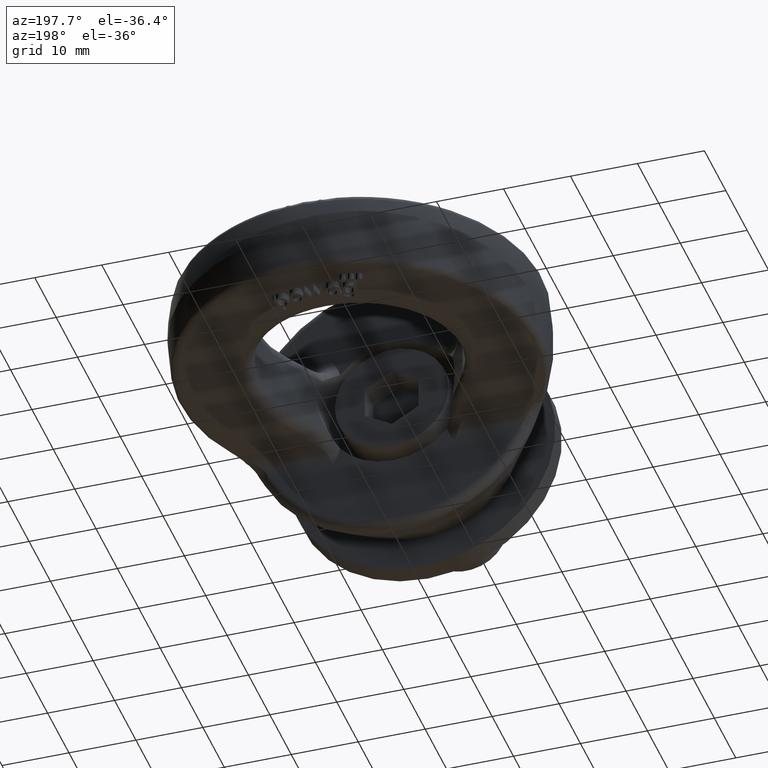
[diagram: clean part render]
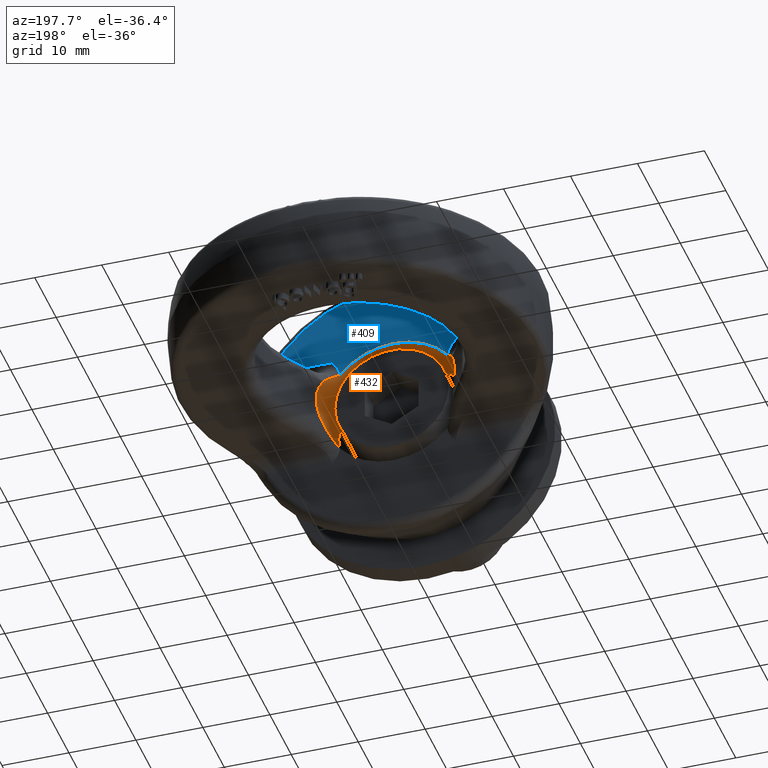
[diagram: same view with the hole feature highlighted: cylindrical wall and planar end face, labeled with their STEP entity ids]
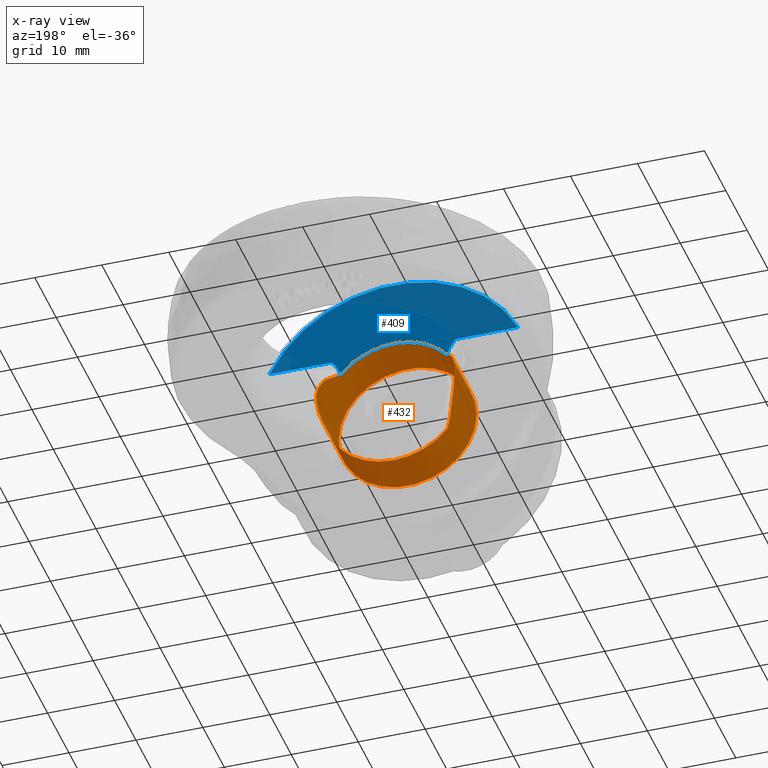
[diagram: x-ray of the same camera — body ghosted, the hole faces saturated]
A machine part, auxiliary view. The highlighted faces form one hole feature of diameter 20.63 mm: the cylindrical wall (entity #432, orange) and its adjacent planar end face (entity #409, blue) — they share a circular edge in the B-rep.
The next image is the same camera in x-ray (body ghosted, the hole faces saturated) — the bore reads through the body.
Wall:
#215=ELLIPSE('',#3365,20.0997606638776,10.3149545762236);
#219=ELLIPSE('',#3370,20.0997606638776,10.3149545762236);
#231=CYLINDRICAL_SURFACE('',#3402,10.3149545762236);
#432=ADVANCED_FACE('',(#762,#763),#231,.F.);
#692=CIRCLE('',#3350,10.3149545762236);
#716=CIRCLE('',#3398,10.3149545762236);
#718=CIRCLE('',#3401,10.3149545762236);
#762=FACE_BOUND('',#844,.T.);
#763=FACE_BOUND('',#845,.T.);
#844=EDGE_LOOP('',(#1627));
#845=EDGE_LOOP('',(#1628,#1629,#1630,#1631,#1632,#1633,#1634,#1635));
#1627=ORIENTED_EDGE('',*,*,#2764,.F.);
#1628=ORIENTED_EDGE('',*,*,#2740,.T.);
#1629=ORIENTED_EDGE('',*,*,#2766,.T.);
#1630=ORIENTED_EDGE('',*,*,#2767,.T.);
#1631=ORIENTED_EDGE('',*,*,#2768,.T.);
#1632=ORIENTED_EDGE('',*,*,#2733,.T.);
#1633=ORIENTED_EDGE('',*,*,#2763,.T.);
#1634=ORIENTED_EDGE('',*,*,#2708,.T.);
#1635=ORIENTED_EDGE('',*,*,#2758,.T.);
#2412=VERTEX_POINT('',#4419);
#2413=VERTEX_POINT('',#4420);
#2435=VERTEX_POINT('',#4501);
#2436=VERTEX_POINT('',#4502);
#2440=VERTEX_POINT('',#4513);
#2441=VERTEX_POINT('',#4515);
#2448=VERTEX_POINT('',#4684);
#2450=VERTEX_POINT('',#4694);
#2451=VERTEX_POINT('',#4696);
#2708=EDGE_CURVE('',#2412,#2413,#692,.T.);
#2733=EDGE_CURVE('',#2435,#2436,#215,.T.);
#2740=EDGE_CURVE('',#2441,#2440,#219,.T.);
#2758=EDGE_CURVE('',#2413,#2441,#3134,.T.);
#2763=EDGE_CURVE('',#2436,#2412,#3135,.T.);
#2764=EDGE_CURVE('',#2448,#2448,#716,.T.);
#2766=EDGE_CURVE('',#2440,#2450,#3136,.T.);
#2767=EDGE_CURVE('',#2450,#2451,#718,.T.);
#2768=EDGE_CURVE('',#2451,#2435,#3137,.T.);
#3134=B_SPLINE_CURVE_WITH_KNOTS('',3,(#4628,#4629,#4630,#4631,#4632,#4633),
 .UNSPECIFIED.,.F.,.F.,(4,2,4),(0.,0.5,1.),.UNSPECIFIED.);
#3135=B_SPLINE_CURVE_WITH_KNOTS('',3,(#4659,#4660,#4661,#4662,#4663,#4664),
 .UNSPECIFIED.,.F.,.F.,(4,2,4),(0.,0.5,1.),.UNSPECIFIED.);
#3136=B_SPLINE_CURVE_WITH_KNOTS('',3,(#4688,#4689,#4690,#4691,#4692,#4693),
 .UNSPECIFIED.,.F.,.F.,(4,2,4),(0.,0.5,1.),.UNSPECIFIED.);
#3137=B_SPLINE_CURVE_WITH_KNOTS('',3,(#4697,#4698,#4699,#4700,#4701,#4702),
 .UNSPECIFIED.,.F.,.F.,(4,2,4),(0.,0.5,1.),.UNSPECIFIED.);
#3350=AXIS2_PLACEMENT_3D('',#4418,#3570,#3571);
#3365=AXIS2_PLACEMENT_3D('',#4500,#3604,#3605);
#3370=AXIS2_PLACEMENT_3D('',#4514,#3617,#3618);
#3398=AXIS2_PLACEMENT_3D('',#4683,#3674,#3675);
#3401=AXIS2_PLACEMENT_3D('',#4695,#3680,#3681);
#3402=AXIS2_PLACEMENT_3D('',#4703,#3682,#3683);
#3570=DIRECTION('',(-4.38613491528481E-16,1.,0.));
#3571=DIRECTION('',(-1.,-3.36351161443873E-16,0.));
#3604=DIRECTION('',(0.858276265611807,0.513187930379751,0.));
#3605=DIRECTION('',(-0.513187930379751,0.858276265611807,0.));
#3617=DIRECTION('',(-0.858276265611807,0.51318793037975,0.));
#3618=DIRECTION('',(0.51318793037975,0.858276265611807,0.));
#3674=DIRECTION('',(-4.38613491528481E-16,1.,0.));
#3675=DIRECTION('',(-1.,-5.04526742165809E-16,0.));
#3680=DIRECTION('',(4.38613491528481E-16,1.,1.02763225525862E-30));
#3681=DIRECTION('',(1.,-3.36351161443873E-16,2.34291072916505E-15));
#3682=DIRECTION('',(0.,1.,0.));
#3683=DIRECTION('',(0.,0.,1.));
#4418=CARTESIAN_POINT('',(0.,16.,0.));
#4419=CARTESIAN_POINT('',(-7.9946415982817,15.9999999999922,6.51797465663843));
#4420=CARTESIAN_POINT('',(7.99464159827745,16.,6.51797465664364));
#4500=CARTESIAN_POINT('',(0.,2.7709415751453,0.));
#4501=CARTESIAN_POINT('',(-9.59391410224325,18.8161918252449,-3.78881249316129));
#4502=CARTESIAN_POINT('',(-9.59391410224327,18.8161918252449,3.78881249316126));
#4513=CARTESIAN_POINT('',(9.59391410224328,18.8161918252449,-3.78881249316124));
#4514=CARTESIAN_POINT('',(0.,2.77094157514529,0.));
#4515=CARTESIAN_POINT('',(9.59391410224326,18.8161918252449,3.78881249316127));
#4628=CARTESIAN_POINT('',(7.99464159828189,15.9999999999924,6.5179746566382));
#4629=CARTESIAN_POINT('',(8.33432097974252,16.4597944126693,6.10133988032189));
#4630=CARTESIAN_POINT('',(8.63847987557659,16.9205075742358,5.65994217188705));
#4631=CARTESIAN_POINT('',(9.15457159783199,17.9032714194584,4.78038688915605));
#4632=CARTESIAN_POINT('',(9.36959059074412,18.4410241053132,4.35683756812157));
#4633=CARTESIAN_POINT('',(9.59391410224262,18.8161918252476,3.78881249316387));
#4659=CARTESIAN_POINT('',(-9.59391410224175,18.8161918252424,3.78881249316195));
#4660=CARTESIAN_POINT('',(-9.36823750505768,18.4387611500435,4.3602638099473));
#4661=CARTESIAN_POINT('',(-9.15521207442521,17.904752043431,4.77907483641717));
#4662=CARTESIAN_POINT('',(-8.64012250164198,16.9233756860375,5.65736224546359));
#4663=CARTESIAN_POINT('',(-8.33454507784786,16.4600977547688,6.10106501211064));
#4664=CARTESIAN_POINT('',(-7.9946415982817,15.9999999999922,6.51797465663843));
#4683=CARTESIAN_POINT('',(0.,9.5,0.));
#4684=CARTESIAN_POINT('',(-10.3149545762236,9.49999999999999,0.));
#4688=CARTESIAN_POINT('',(9.59391410224176,18.8161918252424,-3.78881249316193));
#4689=CARTESIAN_POINT('',(9.36823750505769,18.4387611500435,-4.36026380994728));
#4690=CARTESIAN_POINT('',(9.15521207442522,17.904752043431,-4.77907483641715));
#4691=CARTESIAN_POINT('',(8.640122501642,16.9233756860375,-5.65736224546357));
#4692=CARTESIAN_POINT('',(8.33454507784788,16.4600977547688,-6.10106501211061));
#4693=CARTESIAN_POINT('',(7.99464159828172,15.9999999999922,-6.51797465663841));
#4694=CARTESIAN_POINT('',(7.99464159828172,15.9999999999922,-6.51797465663841));
#4695=CARTESIAN_POINT('',(0.,16.,0.));
#4696=CARTESIAN_POINT('',(-7.99464159827744,16.,-6.51797465664366));
#4697=CARTESIAN_POINT('',(-7.99464159828188,15.9999999999924,-6.51797465663822));
#4698=CARTESIAN_POINT('',(-8.33432097974251,16.4597944126693,-6.10133988032192));
#4699=CARTESIAN_POINT('',(-8.63847987557657,16.9205075742358,-5.65994217188708));
#4700=CARTESIAN_POINT('',(-9.15457159783198,17.9032714194584,-4.78038688915607));
#4701=CARTESIAN_POINT('',(-9.36959059074411,18.4410241053132,-4.35683756812159));
#4702=CARTESIAN_POINT('',(-9.59391410224261,18.8161918252476,-3.7888124931639));
#4703=CARTESIAN_POINT('',(0.,8.75,0.));
End face:
#246=FACE_OUTER_BOUND('',#816,.T.);
#409=ADVANCED_FACE('',(#246),#596,.T.);
#596=PLANE('',#3352);
#692=CIRCLE('',#3350,10.3149545762236);
#693=CIRCLE('',#3351,20.657406330606);
#816=EDGE_LOOP('',(#1524,#1525,#1526,#1527,#1528,#1529));
#1060=LINE('',#4426,#1252);
#1061=LINE('',#4430,#1253);
#1252=VECTOR('',#3572,1.);
#1253=VECTOR('',#3575,1.);
#1524=ORIENTED_EDGE('',*,*,#2708,.F.);
#1525=ORIENTED_EDGE('',*,*,#2709,.T.);
#1526=ORIENTED_EDGE('',*,*,#2710,.T.);
#1527=ORIENTED_EDGE('',*,*,#2711,.T.);
#1528=ORIENTED_EDGE('',*,*,#2712,.T.);
#1529=ORIENTED_EDGE('',*,*,#2713,.T.);
#2412=VERTEX_POINT('',#4419);
#2413=VERTEX_POINT('',#4420);
#2414=VERTEX_POINT('',#4425);
#2415=VERTEX_POINT('',#4427);
#2416=VERTEX_POINT('',#4429);
#2417=VERTEX_POINT('',#4431);
#2708=EDGE_CURVE('',#2412,#2413,#692,.T.);
#2709=EDGE_CURVE('',#2412,#2414,#3120,.T.);
#2710=EDGE_CURVE('',#2414,#2415,#1060,.T.);
#2711=EDGE_CURVE('',#2415,#2416,#693,.T.);
#2712=EDGE_CURVE('',#2416,#2417,#1061,.T.);
#2713=EDGE_CURVE('',#2417,#2413,#3121,.T.);
#3120=B_SPLINE_CURVE_WITH_KNOTS('',3,(#4421,#4422,#4423,#4424),
 .UNSPECIFIED.,.F.,.F.,(4,4),(0.,1.),.UNSPECIFIED.);
#3121=B_SPLINE_CURVE_WITH_KNOTS('',3,(#4432,#4433,#4434,#4435),
 .UNSPECIFIED.,.F.,.F.,(4,4),(0.,1.),.UNSPECIFIED.);
#3350=AXIS2_PLACEMENT_3D('',#4418,#3570,#3571);
#3351=AXIS2_PLACEMENT_3D('',#4428,#3573,#3574);
#3352=AXIS2_PLACEMENT_3D('',#4436,#3576,#3577);
#3570=DIRECTION('',(-4.38613491528481E-16,1.,0.));
#3571=DIRECTION('',(-1.,-3.36351161443873E-16,0.));
#3572=DIRECTION('',(-1.,-4.38613491528481E-16,5.02463381551158E-32));
#3573=DIRECTION('',(-4.38613491528481E-16,1.,0.));
#3574=DIRECTION('',(-1.,-5.03855164064806E-16,0.));
#3575=DIRECTION('',(-1.,-4.38613491528481E-16,5.02463381551158E-32));
#3576=DIRECTION('',(-4.38613491528481E-16,1.,0.));
#3577=DIRECTION('',(-1.,-4.37150315946155E-16,0.));
#4418=CARTESIAN_POINT('',(0.,16.,0.));
#4419=CARTESIAN_POINT('',(-7.9946415982817,15.9999999999922,6.51797465663843));
#4420=CARTESIAN_POINT('',(7.99464159827745,16.,6.51797465664364));
#4421=CARTESIAN_POINT('',(-7.99464159828825,16.,6.51797465663731));
#4422=CARTESIAN_POINT('',(-8.17315290701822,16.,7.43671241120479));
#4423=CARTESIAN_POINT('',(-8.64808604660783,16.,8.30207519465504));
#4424=CARTESIAN_POINT('',(-9.27130622136025,16.,9.00000000000001));
#4425=CARTESIAN_POINT('',(-9.27130622136025,16.,9.00000000000001));
#4426=CARTESIAN_POINT('',(-7.91003245217853,16.,9.00000000000001));
#4427=CARTESIAN_POINT('',(-18.5937741275882,16.,9.00000000000001));
#4428=CARTESIAN_POINT('',(-2.01761351647714E-13,16.,0.));
#4429=CARTESIAN_POINT('',(18.5937741275878,16.,9.00000000000001));
#4430=CARTESIAN_POINT('',(-7.91003245217853,16.,9.00000000000001));
#4431=CARTESIAN_POINT('',(9.27130622136025,16.,9.00000000000001));
#4432=CARTESIAN_POINT('',(9.27130622136025,16.,9.00000000000001));
#4433=CARTESIAN_POINT('',(8.64808604657685,16.,8.30207519468467));
#4434=CARTESIAN_POINT('',(8.17315290701966,16.,7.43671241120754));
#4435=CARTESIAN_POINT('',(7.9946415982891,16.,6.51797465664165));
#4436=CARTESIAN_POINT('',(-7.91003245217853,16.,30.25));